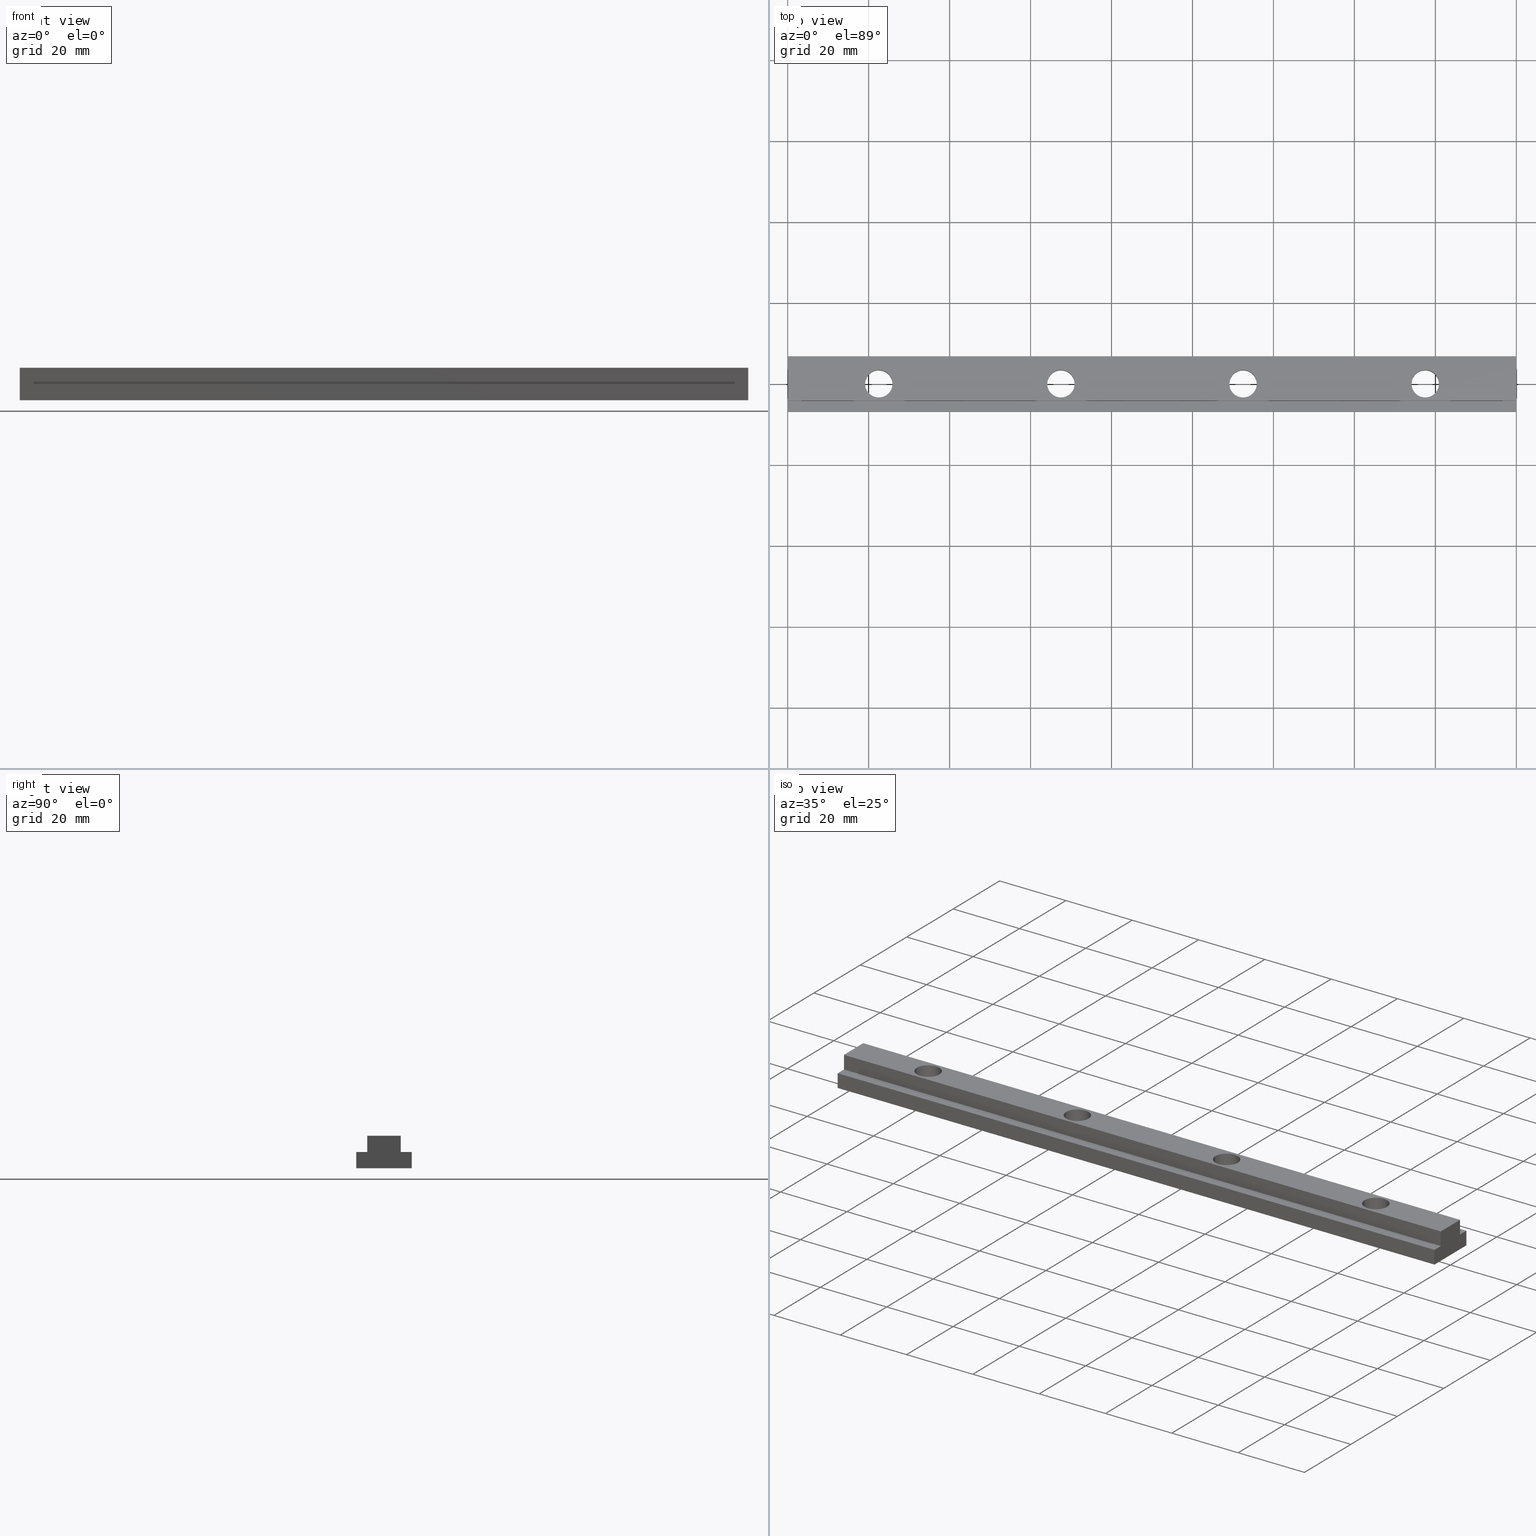
[diagram: canonical four-view strip — front | top / right | iso, engineering-drawing reading convention]
A machine part, canonical four-view strip (front | top / right | iso — engineering-drawing reading convention). The complete STEP part file that produces these views, byte-faithful:
ISO-10303-21;
HEADER;
/****************************************************************
 * Generated by software with PDE/Lib inside                    *
 * PDElib Version v4.4, created Mon 02/23/2004                  *
 * International Technegroup Inc. (www.iti-oh.com)              *
 ****************************************************************/
FILE_DESCRIPTION(('STEP AP203'),'2;1');
FILE_NAME('14.304.00.stp','2011-02-14T08:43:40',(''),(''),'2009.3.110','THINKDESIGN','');
FILE_SCHEMA(('CONFIG_CONTROL_DESIGN'));
ENDSEC;
DATA;
#2=CARTESIAN_POINT('',(112.500000000000060,1.093121E-014,8.000000010000008));
#3=DIRECTION('',(0.0,-6.123234E-017,-1.0));
#4=DIRECTION('',(6.123234E-017,-1.0,6.123234E-017));
#5=AXIS2_PLACEMENT_3D('',#2,#3,#4);
#6=CYLINDRICAL_SURFACE('',#5,3.400000000000001);
#7=CARTESIAN_POINT('',(115.900000000000050,1.113940E-014,8.000000000000007));
#8=VERTEX_POINT('',#7);
#9=CARTESIAN_POINT('',(109.100000000000050,1.072302E-014,8.000000000000007));
#10=VERTEX_POINT('',#9);
#11=CARTESIAN_POINT('',(112.500000000000040,1.093121E-014,8.000000000000007));
#12=DIRECTION('',(0.0,6.123234E-017,1.0));
#13=DIRECTION('',(-1.0,-6.123234E-017,3.749399E-033));
#14=AXIS2_PLACEMENT_3D('',#11,#12,#13);
#15=CIRCLE('',#14,3.400000000000001);
#16=EDGE_CURVE('',#8,#10,#15,.T.);
#17=ORIENTED_EDGE('',*,*,#16,.T.);
#18=CARTESIAN_POINT('',(109.100000000000050,1.023316E-014,-6.266005E-031));
#19=VERTEX_POINT('',#18);
#20=CARTESIAN_POINT('',(109.100000000000050,1.072302E-014,8.000000000000007));
#21=DIRECTION('',(0.0,0.0,-1.0));
#22=VECTOR('',#21,8.000000000000007);
#23=LINE('',#20,#22);
#24=EDGE_CURVE('',#10,#19,#23,.T.);
#25=ORIENTED_EDGE('',*,*,#24,.T.);
#26=CARTESIAN_POINT('',(115.900000000000050,1.064954E-014,-6.520964E-031));
#27=VERTEX_POINT('',#26);
#28=CARTESIAN_POINT('',(112.500000000000040,1.044135E-014,-6.393484E-031));
#29=DIRECTION('',(0.0,-6.123234E-017,-1.0));
#30=DIRECTION('',(1.0,6.123234E-017,-3.749399E-033));
#31=AXIS2_PLACEMENT_3D('',#28,#29,#30);
#32=CIRCLE('',#31,3.400000000000001);
#33=EDGE_CURVE('',#19,#27,#32,.T.);
#34=ORIENTED_EDGE('',*,*,#33,.T.);
#35=CARTESIAN_POINT('',(115.900000000000050,1.113940E-014,8.000000000000007));
#36=DIRECTION('',(0.0,0.0,-1.0));
#37=VECTOR('',#36,8.000000000000007);
#38=LINE('',#35,#37);
#39=EDGE_CURVE('',#8,#27,#38,.T.);
#40=ORIENTED_EDGE('',*,*,#39,.F.);
#41=EDGE_LOOP('',(#17,#25,#34,#40));
#42=FACE_OUTER_BOUND('',#41,.T.);
#43=ADVANCED_FACE('',(#42),#6,.F.);
#44=CARTESIAN_POINT('',(157.500000000000060,2.789752E-014,8.000000010000008));
#45=DIRECTION('',(0.0,-6.123234E-017,-1.0));
#46=DIRECTION('',(6.123234E-017,-1.0,6.123234E-017));
#47=AXIS2_PLACEMENT_3D('',#44,#45,#46);
#48=CYLINDRICAL_SURFACE('',#47,3.399999999999987);
#49=CARTESIAN_POINT('',(160.900000000000010,1.389486E-014,8.000000000000007));
#50=VERTEX_POINT('',#49);
#51=CARTESIAN_POINT('',(154.100000000000050,1.347848E-014,8.000000000000007));
#52=VERTEX_POINT('',#51);
#53=CARTESIAN_POINT('',(157.500000000000060,1.368667E-014,8.000000000000007));
#54=DIRECTION('',(0.0,6.123234E-017,1.0));
#55=DIRECTION('',(-1.0,-6.123234E-017,3.749399E-033));
#56=AXIS2_PLACEMENT_3D('',#53,#54,#55);
#57=CIRCLE('',#56,3.399999999999987);
#58=EDGE_CURVE('',#50,#52,#57,.T.);
#59=ORIENTED_EDGE('',*,*,#58,.T.);
#60=CARTESIAN_POINT('',(154.100000000000050,1.298862E-014,-7.953234E-031));
#61=VERTEX_POINT('',#60);
#62=CARTESIAN_POINT('',(154.100000000000050,1.347848E-014,8.000000000000007));
#63=DIRECTION('',(0.0,0.0,-1.0));
#64=VECTOR('',#63,8.000000000000007);
#65=LINE('',#62,#64);
#66=EDGE_CURVE('',#52,#61,#65,.T.);
#67=ORIENTED_EDGE('',*,*,#66,.T.);
#68=CARTESIAN_POINT('',(160.900000000000010,1.340500E-014,-8.208193E-031));
#69=VERTEX_POINT('',#68);
#70=CARTESIAN_POINT('',(157.500000000000060,1.319681E-014,-8.080714E-031));
#71=DIRECTION('',(0.0,-6.123234E-017,-1.0));
#72=DIRECTION('',(1.0,6.123234E-017,-3.749399E-033));
#73=AXIS2_PLACEMENT_3D('',#70,#71,#72);
#74=CIRCLE('',#73,3.399999999999987);
#75=EDGE_CURVE('',#61,#69,#74,.T.);
#76=ORIENTED_EDGE('',*,*,#75,.T.);
#77=CARTESIAN_POINT('',(160.900000000000010,1.389486E-014,8.000000000000007));
#78=DIRECTION('',(0.0,0.0,-1.0));
#79=VECTOR('',#78,8.000000000000007);
#80=LINE('',#77,#79);
#81=EDGE_CURVE('',#50,#69,#80,.T.);
#82=ORIENTED_EDGE('',*,*,#81,.F.);
#83=EDGE_LOOP('',(#59,#67,#76,#82));
#84=FACE_OUTER_BOUND('',#83,.T.);
#85=ADVANCED_FACE('',(#84),#48,.F.);
#86=CARTESIAN_POINT('',(22.500000000000004,5.420300E-015,8.000000010000008));
#87=DIRECTION('',(0.0,-6.123234E-017,-1.0));
#88=DIRECTION('',(6.123234E-017,-1.0,6.123234E-017));
#89=AXIS2_PLACEMENT_3D('',#86,#87,#88);
#90=CYLINDRICAL_SURFACE('',#89,3.400000000000001);
#91=CARTESIAN_POINT('',(25.900000000000002,5.628490E-015,8.000000000000007));
#92=VERTEX_POINT('',#91);
#93=CARTESIAN_POINT('',(19.100000000000005,5.212110E-015,8.000000000000007));
#94=VERTEX_POINT('',#93);
#95=CARTESIAN_POINT('',(22.500000000000004,5.420300E-015,8.000000000000007));
#96=DIRECTION('',(0.0,6.123234E-017,1.0));
#97=DIRECTION('',(-1.0,-6.123234E-017,3.749399E-033));
#98=AXIS2_PLACEMENT_3D('',#95,#96,#97);
#99=CIRCLE('',#98,3.400000000000001);
#100=EDGE_CURVE('',#92,#94,#99,.T.);
#101=ORIENTED_EDGE('',*,*,#100,.T.);
#102=CARTESIAN_POINT('',(19.100000000000005,4.722251E-015,-2.891545E-031));
#103=VERTEX_POINT('',#102);
#104=CARTESIAN_POINT('',(19.100000000000005,5.212110E-015,8.000000000000007));
#105=DIRECTION('',(0.0,0.0,-1.0));
#106=VECTOR('',#105,8.000000000000007);
#107=LINE('',#104,#106);
#108=EDGE_CURVE('',#94,#103,#107,.T.);
#109=ORIENTED_EDGE('',*,*,#108,.T.);
#110=CARTESIAN_POINT('',(25.900000000000002,5.138631E-015,-3.146504E-031));
#111=VERTEX_POINT('',#110);
#112=CARTESIAN_POINT('',(22.500000000000004,4.930441E-015,-3.019025E-031));
#113=DIRECTION('',(0.0,-6.123234E-017,-1.0));
#114=DIRECTION('',(1.0,6.123234E-017,-3.749399E-033));
#115=AXIS2_PLACEMENT_3D('',#112,#113,#114);
#116=CIRCLE('',#115,3.400000000000001);
#117=EDGE_CURVE('',#103,#111,#116,.T.);
#118=ORIENTED_EDGE('',*,*,#117,.T.);
#119=CARTESIAN_POINT('',(25.900000000000002,5.628490E-015,8.000000000000007));
#120=DIRECTION('',(0.0,0.0,-1.0));
#121=VECTOR('',#120,8.000000000000007);
#122=LINE('',#119,#121);
#123=EDGE_CURVE('',#92,#111,#122,.T.);
#124=ORIENTED_EDGE('',*,*,#123,.F.);
#125=EDGE_LOOP('',(#101,#109,#118,#124));
#126=FACE_OUTER_BOUND('',#125,.T.);
#127=ADVANCED_FACE('',(#126),#90,.F.);
#128=CARTESIAN_POINT('',(67.500000000000000,8.175755E-015,8.000000010000008));
#129=DIRECTION('',(0.0,-6.123234E-017,-1.0));
#130=DIRECTION('',(6.123234E-017,-1.0,6.123234E-017));
#131=AXIS2_PLACEMENT_3D('',#128,#129,#130);
#132=CYLINDRICAL_SURFACE('',#131,3.400000000000001);
#133=CARTESIAN_POINT('',(70.900000000000020,8.383945E-015,8.000000000000007));
#134=VERTEX_POINT('',#133);
#135=CARTESIAN_POINT('',(64.100000000000023,7.967565E-015,8.000000000000007));
#136=VERTEX_POINT('',#135);
#137=CARTESIAN_POINT('',(67.500000000000000,8.175755E-015,8.000000000000007));
#138=DIRECTION('',(0.0,6.123234E-017,1.0));
#139=DIRECTION('',(-1.0,-6.123234E-017,3.749399E-033));
#140=AXIS2_PLACEMENT_3D('',#137,#138,#139);
#141=CIRCLE('',#140,3.400000000000001);
#142=EDGE_CURVE('',#134,#136,#141,.T.);
#143=ORIENTED_EDGE('',*,*,#142,.T.);
#144=CARTESIAN_POINT('',(64.100000000000023,7.477707E-015,-4.578775E-031));
#145=VERTEX_POINT('',#144);
#146=CARTESIAN_POINT('',(64.100000000000023,7.967565E-015,8.000000000000007));
#147=DIRECTION('',(0.0,0.0,-1.0));
#148=VECTOR('',#147,8.000000000000007);
#149=LINE('',#146,#148);
#150=EDGE_CURVE('',#136,#145,#149,.T.);
#151=ORIENTED_EDGE('',*,*,#150,.T.);
#152=CARTESIAN_POINT('',(70.900000000000020,7.894087E-015,-4.833734E-031));
#153=VERTEX_POINT('',#152);
#154=CARTESIAN_POINT('',(67.500000000000000,7.685897E-015,-4.706254E-031));
#155=DIRECTION('',(0.0,-6.123234E-017,-1.0));
#156=DIRECTION('',(1.0,6.123234E-017,-3.749399E-033));
#157=AXIS2_PLACEMENT_3D('',#154,#155,#156);
#158=CIRCLE('',#157,3.400000000000001);
#159=EDGE_CURVE('',#145,#153,#158,.T.);
#160=ORIENTED_EDGE('',*,*,#159,.T.);
#161=CARTESIAN_POINT('',(70.900000000000020,8.383945E-015,8.000000000000007));
#162=DIRECTION('',(0.0,0.0,-1.0));
#163=VECTOR('',#162,8.000000000000007);
#164=LINE('',#161,#163);
#165=EDGE_CURVE('',#134,#153,#164,.T.);
#166=ORIENTED_EDGE('',*,*,#165,.F.);
#167=EDGE_LOOP('',(#143,#151,#160,#166));
#168=FACE_OUTER_BOUND('',#167,.T.);
#169=ADVANCED_FACE('',(#168),#132,.F.);
#170=CARTESIAN_POINT('',(189.0,6.850000000000009,-0.200000000000000));
#171=DIRECTION('',(0.0,1.0,0.0));
#172=DIRECTION('',(-1.0,0.0,0.0));
#173=AXIS2_PLACEMENT_3D('',#170,#171,#172);
#174=PLANE('',#173);
#175=CARTESIAN_POINT('',(3.133272E-015,6.849999999999998,4.000000000000000));
#176=VERTEX_POINT('',#175);
#177=CARTESIAN_POINT('',(3.133272E-015,6.849999999999998,-4.194415E-016));
#178=VERTEX_POINT('',#177);
#179=CARTESIAN_POINT('',(3.133272E-015,6.849999999999998,4.000000000000000));
#180=DIRECTION('',(0.0,0.0,-1.0));
#181=VECTOR('',#180,4.0);
#182=LINE('',#179,#181);
#183=EDGE_CURVE('',#176,#178,#182,.T.);
#184=ORIENTED_EDGE('',*,*,#183,.F.);
#185=CARTESIAN_POINT('',(180.0,6.850000000000009,4.000000000000000));
#186=VERTEX_POINT('',#185);
#187=CARTESIAN_POINT('',(180.0,6.850000000000009,4.000000000000000));
#188=DIRECTION('',(-1.0,0.0,0.0));
#189=VECTOR('',#188,180.0);
#190=LINE('',#187,#189);
#191=EDGE_CURVE('',#186,#176,#190,.T.);
#192=ORIENTED_EDGE('',*,*,#191,.F.);
#193=CARTESIAN_POINT('',(180.0,6.850000000000009,-4.194415E-016));
#194=VERTEX_POINT('',#193);
#195=CARTESIAN_POINT('',(180.0,6.850000000000009,4.000000000000000));
#196=DIRECTION('',(0.0,0.0,-1.0));
#197=VECTOR('',#196,4.0);
#198=LINE('',#195,#197);
#199=EDGE_CURVE('',#186,#194,#198,.T.);
#200=ORIENTED_EDGE('',*,*,#199,.T.);
#201=CARTESIAN_POINT('',(180.0,6.850000000000009,-4.194415E-016));
#202=DIRECTION('',(-1.0,0.0,0.0));
#203=VECTOR('',#202,180.0);
#204=LINE('',#201,#203);
#205=EDGE_CURVE('',#194,#178,#204,.T.);
#206=ORIENTED_EDGE('',*,*,#205,.T.);
#207=EDGE_LOOP('',(#184,#192,#200,#206));
#208=FACE_OUTER_BOUND('',#207,.T.);
#209=ADVANCED_FACE('',(#208),#174,.T.);
#210=CARTESIAN_POINT('',(-8.999999999999996,7.534999999999999,-4.613857E-016));
#211=DIRECTION('',(0.0,0.0,-1.0));
#212=DIRECTION('',(1.0,0.0,0.0));
#213=AXIS2_PLACEMENT_3D('',#210,#211,#212);
#214=PLANE('',#213);
#215=CARTESIAN_POINT('',(3.972155E-015,-6.849999999999994,4.194415E-016));
#216=VERTEX_POINT('',#215);
#217=CARTESIAN_POINT('',(3.133272E-015,6.849999999999998,-4.194415E-016));
#218=DIRECTION('',(0.0,-1.0,0.0));
#219=VECTOR('',#218,13.699999999999996);
#220=LINE('',#217,#219);
#221=EDGE_CURVE('',#178,#216,#220,.T.);
#222=ORIENTED_EDGE('',*,*,#221,.F.);
#223=ORIENTED_EDGE('',*,*,#205,.F.);
#224=CARTESIAN_POINT('',(180.0,-6.849999999999984,4.194415E-016));
#225=VERTEX_POINT('',#224);
#226=CARTESIAN_POINT('',(180.0,6.850000000000009,-4.194415E-016));
#227=DIRECTION('',(0.0,-1.0,0.0));
#228=VECTOR('',#227,13.699999999999996);
#229=LINE('',#226,#228);
#230=EDGE_CURVE('',#194,#225,#229,.T.);
#231=ORIENTED_EDGE('',*,*,#230,.T.);
#232=CARTESIAN_POINT('',(180.0,-6.849999999999984,4.194415E-016));
#233=DIRECTION('',(-1.0,0.0,0.0));
#234=VECTOR('',#233,180.0);
#235=LINE('',#232,#234);
#236=EDGE_CURVE('',#225,#216,#235,.T.);
#237=ORIENTED_EDGE('',*,*,#236,.T.);
#238=EDGE_LOOP('',(#222,#223,#231,#237));
#239=FACE_OUTER_BOUND('',#238,.T.);
#240=CARTESIAN_POINT('',(157.500000000000060,1.319681E-014,-8.080714E-031));
#241=DIRECTION('',(0.0,-6.123234E-017,-1.0));
#242=DIRECTION('',(1.0,6.123234E-017,-3.749399E-033));
#243=AXIS2_PLACEMENT_3D('',#240,#241,#242);
#244=CIRCLE('',#243,3.399999999999987);
#245=EDGE_CURVE('',#69,#61,#244,.T.);
#246=ORIENTED_EDGE('',*,*,#245,.F.);
#247=ORIENTED_EDGE('',*,*,#75,.F.);
#248=EDGE_LOOP('',(#246,#247));
#249=FACE_BOUND('',#248,.T.);
#250=CARTESIAN_POINT('',(22.500000000000004,4.930441E-015,-3.019025E-031));
#251=DIRECTION('',(0.0,-6.123234E-017,-1.0));
#252=DIRECTION('',(1.0,6.123234E-017,-3.749399E-033));
#253=AXIS2_PLACEMENT_3D('',#250,#251,#252);
#254=CIRCLE('',#253,3.400000000000001);
#255=EDGE_CURVE('',#111,#103,#254,.T.);
#256=ORIENTED_EDGE('',*,*,#255,.F.);
#257=ORIENTED_EDGE('',*,*,#117,.F.);
#258=EDGE_LOOP('',(#256,#257));
#259=FACE_BOUND('',#258,.T.);
#260=CARTESIAN_POINT('',(67.500000000000000,7.685897E-015,-4.706254E-031));
#261=DIRECTION('',(0.0,-6.123234E-017,-1.0));
#262=DIRECTION('',(1.0,6.123234E-017,-3.749399E-033));
#263=AXIS2_PLACEMENT_3D('',#260,#261,#262);
#264=CIRCLE('',#263,3.400000000000001);
#265=EDGE_CURVE('',#153,#145,#264,.T.);
#266=ORIENTED_EDGE('',*,*,#265,.F.);
#267=ORIENTED_EDGE('',*,*,#159,.F.);
#268=EDGE_LOOP('',(#266,#267));
#269=FACE_BOUND('',#268,.T.);
#270=CARTESIAN_POINT('',(112.500000000000040,1.044135E-014,-6.393484E-031));
#271=DIRECTION('',(0.0,-6.123234E-017,-1.0));
#272=DIRECTION('',(1.0,6.123234E-017,-3.749399E-033));
#273=AXIS2_PLACEMENT_3D('',#270,#271,#272);
#274=CIRCLE('',#273,3.400000000000001);
#275=EDGE_CURVE('',#27,#19,#274,.T.);
#276=ORIENTED_EDGE('',*,*,#275,.F.);
#277=ORIENTED_EDGE('',*,*,#33,.F.);
#278=EDGE_LOOP('',(#276,#277));
#279=FACE_BOUND('',#278,.T.);
#280=ADVANCED_FACE('',(#239,#249,#259,#269,#279),#214,.T.);
#281=CARTESIAN_POINT('',(189.0,-6.849999999999983,-0.199999999999999));
#282=DIRECTION('',(0.0,-1.0,0.0));
#283=DIRECTION('',(0.0,0.0,1.0));
#284=AXIS2_PLACEMENT_3D('',#281,#282,#283);
#285=PLANE('',#284);
#286=CARTESIAN_POINT('',(3.972155E-015,-6.849999999999998,4.0));
#287=VERTEX_POINT('',#286);
#288=CARTESIAN_POINT('',(3.972155E-015,-6.849999999999994,4.194415E-016));
#289=DIRECTION('',(0.0,0.0,1.0));
#290=VECTOR('',#289,4.000000000000000);
#291=LINE('',#288,#290);
#292=EDGE_CURVE('',#216,#287,#291,.T.);
#293=ORIENTED_EDGE('',*,*,#292,.F.);
#294=ORIENTED_EDGE('',*,*,#236,.F.);
#295=CARTESIAN_POINT('',(180.0,-6.849999999999987,4.0));
#296=VERTEX_POINT('',#295);
#297=CARTESIAN_POINT('',(180.0,-6.849999999999984,4.194415E-016));
#298=DIRECTION('',(0.0,0.0,1.0));
#299=VECTOR('',#298,4.000000000000000);
#300=LINE('',#297,#299);
#301=EDGE_CURVE('',#225,#296,#300,.T.);
#302=ORIENTED_EDGE('',*,*,#301,.T.);
#303=CARTESIAN_POINT('',(180.0,-6.849999999999987,4.0));
#304=DIRECTION('',(-1.0,0.0,0.0));
#305=VECTOR('',#304,180.0);
#306=LINE('',#303,#305);
#307=EDGE_CURVE('',#296,#287,#306,.T.);
#308=ORIENTED_EDGE('',*,*,#307,.T.);
#309=EDGE_LOOP('',(#293,#294,#302,#308));
#310=FACE_OUTER_BOUND('',#309,.T.);
#311=ADVANCED_FACE('',(#310),#285,.T.);
#312=CARTESIAN_POINT('',(189.0,-4.014999999999986,4.0));
#313=DIRECTION('',(0.0,0.0,1.0));
#314=DIRECTION('',(-1.0,0.0,0.0));
#315=AXIS2_PLACEMENT_3D('',#312,#313,#314);
#316=PLANE('',#315);
#317=CARTESIAN_POINT('',(3.806828E-015,-4.149999999999995,4.0));
#318=VERTEX_POINT('',#317);
#319=CARTESIAN_POINT('',(3.972155E-015,-6.849999999999998,4.0));
#320=DIRECTION('',(0.0,1.0,0.0));
#321=VECTOR('',#320,2.700000000000003);
#322=LINE('',#319,#321);
#323=EDGE_CURVE('',#287,#318,#322,.T.);
#324=ORIENTED_EDGE('',*,*,#323,.F.);
#325=ORIENTED_EDGE('',*,*,#307,.F.);
#326=CARTESIAN_POINT('',(180.0,-4.149999999999984,4.0));
#327=VERTEX_POINT('',#326);
#328=CARTESIAN_POINT('',(180.0,-6.849999999999987,4.0));
#329=DIRECTION('',(0.0,1.0,0.0));
#330=VECTOR('',#329,2.700000000000003);
#331=LINE('',#328,#330);
#332=EDGE_CURVE('',#296,#327,#331,.T.);
#333=ORIENTED_EDGE('',*,*,#332,.T.);
#334=CARTESIAN_POINT('',(180.0,-4.149999999999984,4.0));
#335=DIRECTION('',(-1.0,0.0,0.0));
#336=VECTOR('',#335,180.0);
#337=LINE('',#334,#336);
#338=EDGE_CURVE('',#327,#318,#337,.T.);
#339=ORIENTED_EDGE('',*,*,#338,.T.);
#340=EDGE_LOOP('',(#324,#325,#333,#339));
#341=FACE_OUTER_BOUND('',#340,.T.);
#342=ADVANCED_FACE('',(#341),#316,.T.);
#343=CARTESIAN_POINT('',(-8.999999999999996,-4.149999999999996,3.800000000000001));
#344=DIRECTION('',(0.0,-1.0,0.0));
#345=DIRECTION('',(1.0,0.0,0.0));
#346=AXIS2_PLACEMENT_3D('',#343,#344,#345);
#347=PLANE('',#346);
#348=CARTESIAN_POINT('',(3.806828E-015,-4.149999999999994,8.0));
#349=VERTEX_POINT('',#348);
#350=CARTESIAN_POINT('',(3.806828E-015,-4.149999999999995,4.0));
#351=DIRECTION('',(0.0,0.0,1.0));
#352=VECTOR('',#351,4.0);
#353=LINE('',#350,#352);
#354=EDGE_CURVE('',#318,#349,#353,.T.);
#355=ORIENTED_EDGE('',*,*,#354,.F.);
#356=ORIENTED_EDGE('',*,*,#338,.F.);
#357=CARTESIAN_POINT('',(180.0,-4.149999999999984,8.0));
#358=VERTEX_POINT('',#357);
#359=CARTESIAN_POINT('',(180.0,-4.149999999999984,4.0));
#360=DIRECTION('',(0.0,0.0,1.0));
#361=VECTOR('',#360,4.0);
#362=LINE('',#359,#361);
#363=EDGE_CURVE('',#327,#358,#362,.T.);
#364=ORIENTED_EDGE('',*,*,#363,.T.);
#365=CARTESIAN_POINT('',(180.0,-4.149999999999984,8.0));
#366=DIRECTION('',(-1.0,0.0,0.0));
#367=VECTOR('',#366,180.0);
#368=LINE('',#365,#367);
#369=EDGE_CURVE('',#358,#349,#368,.T.);
#370=ORIENTED_EDGE('',*,*,#369,.T.);
#371=EDGE_LOOP('',(#355,#356,#364,#370));
#372=FACE_OUTER_BOUND('',#371,.T.);
#373=ADVANCED_FACE('',(#372),#347,.T.);
#374=CARTESIAN_POINT('',(189.0,4.565000000000014,8.0));
#375=DIRECTION('',(0.0,0.0,1.0));
#376=DIRECTION('',(-1.0,0.0,0.0));
#377=AXIS2_PLACEMENT_3D('',#374,#375,#376);
#378=PLANE('',#377);
#379=CARTESIAN_POINT('',(3.298599E-015,4.150000000000003,8.0));
#380=VERTEX_POINT('',#379);
#381=CARTESIAN_POINT('',(3.806828E-015,-4.149999999999994,8.0));
#382=DIRECTION('',(0.0,1.0,0.0));
#383=VECTOR('',#382,8.299999999999997);
#384=LINE('',#381,#383);
#385=EDGE_CURVE('',#349,#380,#384,.T.);
#386=ORIENTED_EDGE('',*,*,#385,.F.);
#387=ORIENTED_EDGE('',*,*,#369,.F.);
#388=CARTESIAN_POINT('',(180.0,4.150000000000014,8.0));
#389=VERTEX_POINT('',#388);
#390=CARTESIAN_POINT('',(180.0,-4.149999999999984,8.0));
#391=DIRECTION('',(0.0,1.0,0.0));
#392=VECTOR('',#391,8.299999999999997);
#393=LINE('',#390,#392);
#394=EDGE_CURVE('',#358,#389,#393,.T.);
#395=ORIENTED_EDGE('',*,*,#394,.T.);
#396=CARTESIAN_POINT('',(180.0,4.150000000000014,8.0));
#397=DIRECTION('',(-1.0,0.0,0.0));
#398=VECTOR('',#397,180.0);
#399=LINE('',#396,#398);
#400=EDGE_CURVE('',#389,#380,#399,.T.);
#401=ORIENTED_EDGE('',*,*,#400,.T.);
#402=EDGE_LOOP('',(#386,#387,#395,#401));
#403=FACE_OUTER_BOUND('',#402,.T.);
#404=ORIENTED_EDGE('',*,*,#58,.F.);
#405=CARTESIAN_POINT('',(157.500000000000060,1.368667E-014,8.000000000000007));
#406=DIRECTION('',(0.0,6.123234E-017,1.0));
#407=DIRECTION('',(-1.0,-6.123234E-017,3.749399E-033));
#408=AXIS2_PLACEMENT_3D('',#405,#406,#407);
#409=CIRCLE('',#408,3.399999999999987);
#410=EDGE_CURVE('',#52,#50,#409,.T.);
#411=ORIENTED_EDGE('',*,*,#410,.F.);
#412=EDGE_LOOP('',(#404,#411));
#413=FACE_BOUND('',#412,.T.);
#414=ORIENTED_EDGE('',*,*,#100,.F.);
#415=CARTESIAN_POINT('',(22.500000000000004,5.420300E-015,8.000000000000007));
#416=DIRECTION('',(0.0,6.123234E-017,1.0));
#417=DIRECTION('',(-1.0,-6.123234E-017,3.749399E-033));
#418=AXIS2_PLACEMENT_3D('',#415,#416,#417);
#419=CIRCLE('',#418,3.400000000000001);
#420=EDGE_CURVE('',#94,#92,#419,.T.);
#421=ORIENTED_EDGE('',*,*,#420,.F.);
#422=EDGE_LOOP('',(#414,#421));
#423=FACE_BOUND('',#422,.T.);
#424=ORIENTED_EDGE('',*,*,#142,.F.);
#425=CARTESIAN_POINT('',(67.500000000000000,8.175755E-015,8.000000000000007));
#426=DIRECTION('',(0.0,6.123234E-017,1.0));
#427=DIRECTION('',(-1.0,-6.123234E-017,3.749399E-033));
#428=AXIS2_PLACEMENT_3D('',#425,#426,#427);
#429=CIRCLE('',#428,3.400000000000001);
#430=EDGE_CURVE('',#136,#134,#429,.T.);
#431=ORIENTED_EDGE('',*,*,#430,.F.);
#432=EDGE_LOOP('',(#424,#431));
#433=FACE_BOUND('',#432,.T.);
#434=ORIENTED_EDGE('',*,*,#16,.F.);
#435=CARTESIAN_POINT('',(112.500000000000040,1.093121E-014,8.000000000000007));
#436=DIRECTION('',(0.0,6.123234E-017,1.0));
#437=DIRECTION('',(-1.0,-6.123234E-017,3.749399E-033));
#438=AXIS2_PLACEMENT_3D('',#435,#436,#437);
#439=CIRCLE('',#438,3.400000000000001);
#440=EDGE_CURVE('',#10,#8,#439,.T.);
#441=ORIENTED_EDGE('',*,*,#440,.F.);
#442=EDGE_LOOP('',(#434,#441));
#443=FACE_BOUND('',#442,.T.);
#444=ADVANCED_FACE('',(#403,#413,#423,#433,#443),#378,.T.);
#445=CARTESIAN_POINT('',(189.0,4.150000000000014,3.800000000000000));
#446=DIRECTION('',(0.0,1.0,0.0));
#447=DIRECTION('',(-1.0,0.0,0.0));
#448=AXIS2_PLACEMENT_3D('',#445,#446,#447);
#449=PLANE('',#448);
#450=CARTESIAN_POINT('',(3.298599E-015,4.150000000000002,4.000000000000000));
#451=VERTEX_POINT('',#450);
#452=CARTESIAN_POINT('',(3.298599E-015,4.150000000000003,8.0));
#453=DIRECTION('',(0.0,0.0,-1.0));
#454=VECTOR('',#453,4.0);
#455=LINE('',#452,#454);
#456=EDGE_CURVE('',#380,#451,#455,.T.);
#457=ORIENTED_EDGE('',*,*,#456,.F.);
#458=ORIENTED_EDGE('',*,*,#400,.F.);
#459=CARTESIAN_POINT('',(180.0,4.150000000000013,4.000000000000000));
#460=VERTEX_POINT('',#459);
#461=CARTESIAN_POINT('',(180.0,4.150000000000014,8.0));
#462=DIRECTION('',(0.0,0.0,-1.0));
#463=VECTOR('',#462,4.0);
#464=LINE('',#461,#463);
#465=EDGE_CURVE('',#389,#460,#464,.T.);
#466=ORIENTED_EDGE('',*,*,#465,.T.);
#467=CARTESIAN_POINT('',(180.0,4.150000000000013,4.000000000000000));
#468=DIRECTION('',(-1.0,0.0,0.0));
#469=VECTOR('',#468,180.0);
#470=LINE('',#467,#469);
#471=EDGE_CURVE('',#460,#451,#470,.T.);
#472=ORIENTED_EDGE('',*,*,#471,.T.);
#473=EDGE_LOOP('',(#457,#458,#466,#472));
#474=FACE_OUTER_BOUND('',#473,.T.);
#475=ADVANCED_FACE('',(#474),#449,.T.);
#476=CARTESIAN_POINT('',(189.0,6.985000000000007,4.000000000000000));
#477=DIRECTION('',(0.0,0.0,1.0));
#478=DIRECTION('',(-1.0,0.0,0.0));
#479=AXIS2_PLACEMENT_3D('',#476,#477,#478);
#480=PLANE('',#479);
#481=CARTESIAN_POINT('',(3.298599E-015,4.150000000000002,4.000000000000000));
#482=DIRECTION('',(0.0,1.0,0.0));
#483=VECTOR('',#482,2.699999999999996);
#484=LINE('',#481,#483);
#485=EDGE_CURVE('',#451,#176,#484,.T.);
#486=ORIENTED_EDGE('',*,*,#485,.F.);
#487=ORIENTED_EDGE('',*,*,#471,.F.);
#488=CARTESIAN_POINT('',(180.0,4.150000000000013,4.000000000000000));
#489=DIRECTION('',(0.0,1.0,0.0));
#490=VECTOR('',#489,2.699999999999996);
#491=LINE('',#488,#490);
#492=EDGE_CURVE('',#460,#186,#491,.T.);
#493=ORIENTED_EDGE('',*,*,#492,.T.);
#494=ORIENTED_EDGE('',*,*,#191,.T.);
#495=EDGE_LOOP('',(#486,#487,#493,#494));
#496=FACE_OUTER_BOUND('',#495,.T.);
#497=ADVANCED_FACE('',(#496),#480,.T.);
#498=CARTESIAN_POINT('',(180.0,7.535000000000011,-0.400000000000001));
#499=DIRECTION('',(-1.0,0.0,0.0));
#500=DIRECTION('',(0.0,-1.0,0.0));
#501=AXIS2_PLACEMENT_3D('',#498,#499,#500);
#502=PLANE('',#501);
#503=ORIENTED_EDGE('',*,*,#199,.F.);
#504=ORIENTED_EDGE('',*,*,#492,.F.);
#505=ORIENTED_EDGE('',*,*,#465,.F.);
#506=ORIENTED_EDGE('',*,*,#394,.F.);
#507=ORIENTED_EDGE('',*,*,#363,.F.);
#508=ORIENTED_EDGE('',*,*,#332,.F.);
#509=ORIENTED_EDGE('',*,*,#301,.F.);
#510=ORIENTED_EDGE('',*,*,#230,.F.);
#511=EDGE_LOOP('',(#503,#504,#505,#506,#507,#508,#509,#510));
#512=FACE_OUTER_BOUND('',#511,.T.);
#513=ADVANCED_FACE('',(#512),#502,.F.);
#514=CARTESIAN_POINT('',(3.091328E-015,7.535000000000000,-0.400000000000001));
#515=DIRECTION('',(-1.0,0.0,0.0));
#516=DIRECTION('',(0.0,-1.0,0.0));
#517=AXIS2_PLACEMENT_3D('',#514,#515,#516);
#518=PLANE('',#517);
#519=ORIENTED_EDGE('',*,*,#183,.T.);
#520=ORIENTED_EDGE('',*,*,#221,.T.);
#521=ORIENTED_EDGE('',*,*,#292,.T.);
#522=ORIENTED_EDGE('',*,*,#323,.T.);
#523=ORIENTED_EDGE('',*,*,#354,.T.);
#524=ORIENTED_EDGE('',*,*,#385,.T.);
#525=ORIENTED_EDGE('',*,*,#456,.T.);
#526=ORIENTED_EDGE('',*,*,#485,.T.);
#527=EDGE_LOOP('',(#519,#520,#521,#522,#523,#524,#525,#526));
#528=FACE_OUTER_BOUND('',#527,.T.);
#529=ADVANCED_FACE('',(#528),#518,.T.);
#530=CARTESIAN_POINT('',(67.500000000000000,8.175755E-015,8.000000010000008));
#531=DIRECTION('',(0.0,-6.123234E-017,-1.0));
#532=DIRECTION('',(-6.123234E-017,1.0,-6.123234E-017));
#533=AXIS2_PLACEMENT_3D('',#530,#531,#532);
#534=CYLINDRICAL_SURFACE('',#533,3.400000000000001);
#535=ORIENTED_EDGE('',*,*,#150,.F.);
#536=ORIENTED_EDGE('',*,*,#430,.T.);
#537=ORIENTED_EDGE('',*,*,#165,.T.);
#538=ORIENTED_EDGE('',*,*,#265,.T.);
#539=EDGE_LOOP('',(#535,#536,#537,#538));
#540=FACE_OUTER_BOUND('',#539,.T.);
#541=ADVANCED_FACE('',(#540),#534,.F.);
#542=CARTESIAN_POINT('',(22.500000000000004,5.420300E-015,8.000000010000008));
#543=DIRECTION('',(0.0,-6.123234E-017,-1.0));
#544=DIRECTION('',(-6.123234E-017,1.0,-6.123234E-017));
#545=AXIS2_PLACEMENT_3D('',#542,#543,#544);
#546=CYLINDRICAL_SURFACE('',#545,3.400000000000001);
#547=ORIENTED_EDGE('',*,*,#108,.F.);
#548=ORIENTED_EDGE('',*,*,#420,.T.);
#549=ORIENTED_EDGE('',*,*,#123,.T.);
#550=ORIENTED_EDGE('',*,*,#255,.T.);
#551=EDGE_LOOP('',(#547,#548,#549,#550));
#552=FACE_OUTER_BOUND('',#551,.T.);
#553=ADVANCED_FACE('',(#552),#546,.F.);
#554=CARTESIAN_POINT('',(157.500000000000060,1.368667E-014,8.000000010000008));
#555=DIRECTION('',(0.0,-6.123234E-017,-1.0));
#556=DIRECTION('',(-6.123234E-017,1.0,-6.123234E-017));
#557=AXIS2_PLACEMENT_3D('',#554,#555,#556);
#558=CYLINDRICAL_SURFACE('',#557,3.399999999999987);
#559=ORIENTED_EDGE('',*,*,#66,.F.);
#560=ORIENTED_EDGE('',*,*,#410,.T.);
#561=ORIENTED_EDGE('',*,*,#81,.T.);
#562=ORIENTED_EDGE('',*,*,#245,.T.);
#563=EDGE_LOOP('',(#559,#560,#561,#562));
#564=FACE_OUTER_BOUND('',#563,.T.);
#565=ADVANCED_FACE('',(#564),#558,.F.);
#566=CARTESIAN_POINT('',(112.500000000000060,1.093121E-014,8.000000010000008));
#567=DIRECTION('',(0.0,-6.123234E-017,-1.0));
#568=DIRECTION('',(-6.123234E-017,1.0,-6.123234E-017));
#569=AXIS2_PLACEMENT_3D('',#566,#567,#568);
#570=CYLINDRICAL_SURFACE('',#569,3.400000000000001);
#571=ORIENTED_EDGE('',*,*,#24,.F.);
#572=ORIENTED_EDGE('',*,*,#440,.T.);
#573=ORIENTED_EDGE('',*,*,#39,.T.);
#574=ORIENTED_EDGE('',*,*,#275,.T.);
#575=EDGE_LOOP('',(#571,#572,#573,#574));
#576=FACE_OUTER_BOUND('',#575,.T.);
#577=ADVANCED_FACE('',(#576),#570,.F.);
#578=CLOSED_SHELL('',(#43,#85,#127,#169,#209,#280,#311,#342,#373,#444,#475,#497,#513,#529,#541,#553,#565,#577));
#579=MANIFOLD_SOLID_BREP('Importato1',#578);
#585=(NAMED_UNIT(*)PLANE_ANGLE_UNIT()SI_UNIT($,.RADIAN.));
#586=DIMENSIONAL_EXPONENTS(0.0,0.0,0.0,0.0,0.0,0.0,0.0);
#587=PLANE_ANGLE_MEASURE_WITH_UNIT(PLANE_ANGLE_MEASURE(0.017453292500000),#585);
#591=(CONVERSION_BASED_UNIT('DEGREE',#587)NAMED_UNIT(#586)PLANE_ANGLE_UNIT());
#595=(NAMED_UNIT(*)SI_UNIT($,.STERADIAN.)SOLID_ANGLE_UNIT());
#599=(LENGTH_UNIT()NAMED_UNIT(*)SI_UNIT(.MILLI.,.METRE.));
#601=UNCERTAINTY_MEASURE_WITH_UNIT(LENGTH_MEASURE(0.001000000000000),#599,'DISTANCE_ACCURACY_VALUE','');
#603=(GEOMETRIC_REPRESENTATION_CONTEXT(3)GLOBAL_UNCERTAINTY_ASSIGNED_CONTEXT((#601))GLOBAL_UNIT_ASSIGNED_CONTEXT((#591,#595,#599))REPRESENTATION_CONTEXT('thinkdesign','2009.3.110'));
#604=ADVANCED_BREP_SHAPE_REPRESENTATION('',(#579),#603);
#605=APPLICATION_CONTEXT('configuration controlled 3D designs of mechanical parts and assemblies');
#606=APPLICATION_PROTOCOL_DEFINITION('International Standard','config_control_design',1995,#605);
#607=MECHANICAL_CONTEXT('None',#605,'mechanical');
#608=PRODUCT('None','None','None',(#607));
#609=PRODUCT_RELATED_PRODUCT_CATEGORY('detail',$,(#608));
#610=PRODUCT_CATEGORY('part',$);
#611=PRODUCT_CATEGORY_RELATIONSHIP('None','None',#610,#609);
#612=PERSON('PERSON1','None','None',$,$,$);
#613=ORGANIZATION('','None','None');
#614=PERSON_AND_ORGANIZATION(#612,#613);
#615=PERSON_AND_ORGANIZATION_ROLE('design_owner');
#616=CC_DESIGN_PERSON_AND_ORGANIZATION_ASSIGNMENT(#614,#615,(#608));
#617=PRODUCT_DEFINITION_FORMATION_WITH_SPECIFIED_SOURCE('None','None',#608,.NOT_KNOWN.);
#618=PERSON('PERSON2','None','None',$,$,$);
#619=ORGANIZATION('','None','None');
#620=PERSON_AND_ORGANIZATION(#618,#619);
#621=PERSON_AND_ORGANIZATION_ROLE('creator');
#622=CC_DESIGN_PERSON_AND_ORGANIZATION_ASSIGNMENT(#620,#621,(#617));
#623=PERSON('PERSON3','None','None',$,$,$);
#624=ORGANIZATION('','None','None');
#625=PERSON_AND_ORGANIZATION(#623,#624);
#626=PERSON_AND_ORGANIZATION_ROLE('part_supplier');
#627=CC_DESIGN_PERSON_AND_ORGANIZATION_ASSIGNMENT(#625,#626,(#617));
#628=APPROVAL_STATUS('approved');
#629=APPROVAL(#628,'None');
#630=PERSON('PERSON4','None','None',$,$,$);
#631=ORGANIZATION('','None','None');
#632=PERSON_AND_ORGANIZATION(#630,#631);
#633=APPROVAL_ROLE('None');
#634=APPROVAL_PERSON_ORGANIZATION(#632,#629,#633);
#635=CALENDAR_DATE(2011,14,2);
#636=COORDINATED_UNIVERSAL_TIME_OFFSET(0,0,.AHEAD.);
#637=LOCAL_TIME(8,43,40.0,#636);
#638=DATE_AND_TIME(#635,#637);
#639=APPROVAL_DATE_TIME(#638,#629);
#640=CC_DESIGN_APPROVAL(#629,(#617));
#641=SECURITY_CLASSIFICATION_LEVEL('unclassified');
#642=SECURITY_CLASSIFICATION('None','None',#641);
#643=CC_DESIGN_SECURITY_CLASSIFICATION(#642,(#617));
#644=APPROVAL_STATUS('approved');
#645=APPROVAL(#644,'None');
#646=PERSON('PERSON5','None','None',$,$,$);
#647=ORGANIZATION('','None','None');
#648=PERSON_AND_ORGANIZATION(#646,#647);
#649=APPROVAL_ROLE('None');
#650=APPROVAL_PERSON_ORGANIZATION(#648,#645,#649);
#651=CALENDAR_DATE(2011,14,2);
#652=COORDINATED_UNIVERSAL_TIME_OFFSET(0,0,.AHEAD.);
#653=LOCAL_TIME(8,43,40.0,#652);
#654=DATE_AND_TIME(#651,#653);
#655=APPROVAL_DATE_TIME(#654,#645);
#656=CC_DESIGN_APPROVAL(#645,(#642));
#657=PERSON('PERSON6','None','None',$,$,$);
#658=ORGANIZATION('','None','None');
#659=PERSON_AND_ORGANIZATION(#657,#658);
#660=PERSON_AND_ORGANIZATION_ROLE('classification_officer');
#661=CC_DESIGN_PERSON_AND_ORGANIZATION_ASSIGNMENT(#659,#660,(#642));
#662=DATE_TIME_ROLE('classification_date');
#663=CALENDAR_DATE(2011,14,2);
#664=COORDINATED_UNIVERSAL_TIME_OFFSET(0,0,.AHEAD.);
#665=LOCAL_TIME(8,43,40.0,#664);
#666=DATE_AND_TIME(#663,#665);
#667=CC_DESIGN_DATE_AND_TIME_ASSIGNMENT(#666,#662,(#642));
#668=DESIGN_CONTEXT('part definition',#605,'design');
#669=DOCUMENT_TYPE('cad_filename');
#670=DOCUMENT('None','None','None',#669);
#671=PRODUCT_DEFINITION_WITH_ASSOCIATED_DOCUMENTS('None','None',#617,#668,(#670));
#672=PERSON('PERSON7','None','None',$,$,$);
#673=ORGANIZATION('','None','None');
#674=PERSON_AND_ORGANIZATION(#672,#673);
#675=PERSON_AND_ORGANIZATION_ROLE('creator');
#676=CC_DESIGN_PERSON_AND_ORGANIZATION_ASSIGNMENT(#674,#675,(#671));
#677=DATE_TIME_ROLE('creation_date');
#678=CALENDAR_DATE(2011,14,2);
#679=COORDINATED_UNIVERSAL_TIME_OFFSET(0,0,.AHEAD.);
#680=LOCAL_TIME(8,43,40.0,#679);
#681=DATE_AND_TIME(#678,#680);
#682=CC_DESIGN_DATE_AND_TIME_ASSIGNMENT(#681,#677,(#671));
#683=APPROVAL_STATUS('approved');
#684=APPROVAL(#683,'None');
#685=PERSON('PERSON8','None','None',$,$,$);
#686=ORGANIZATION('','None','None');
#687=PERSON_AND_ORGANIZATION(#685,#686);
#688=APPROVAL_ROLE('None');
#689=APPROVAL_PERSON_ORGANIZATION(#687,#684,#688);
#690=CALENDAR_DATE(2011,14,2);
#691=COORDINATED_UNIVERSAL_TIME_OFFSET(0,0,.AHEAD.);
#692=LOCAL_TIME(8,43,40.0,#691);
#693=DATE_AND_TIME(#690,#692);
#694=APPROVAL_DATE_TIME(#693,#684);
#695=CC_DESIGN_APPROVAL(#684,(#671));
#696=PRODUCT_DEFINITION_SHAPE('None','None',#671);
#697=SHAPE_DEFINITION_REPRESENTATION(#696,#604);
#698=DIMENSIONAL_EXPONENTS(0.0,0.0,0.0,0.0,0.0,0.0,0.0);
#699=DIMENSIONAL_EXPONENTS(1.0,0.0,0.0,0.0,0.0,0.0,0.0);
ENDSEC;
END-ISO-10303-21;
